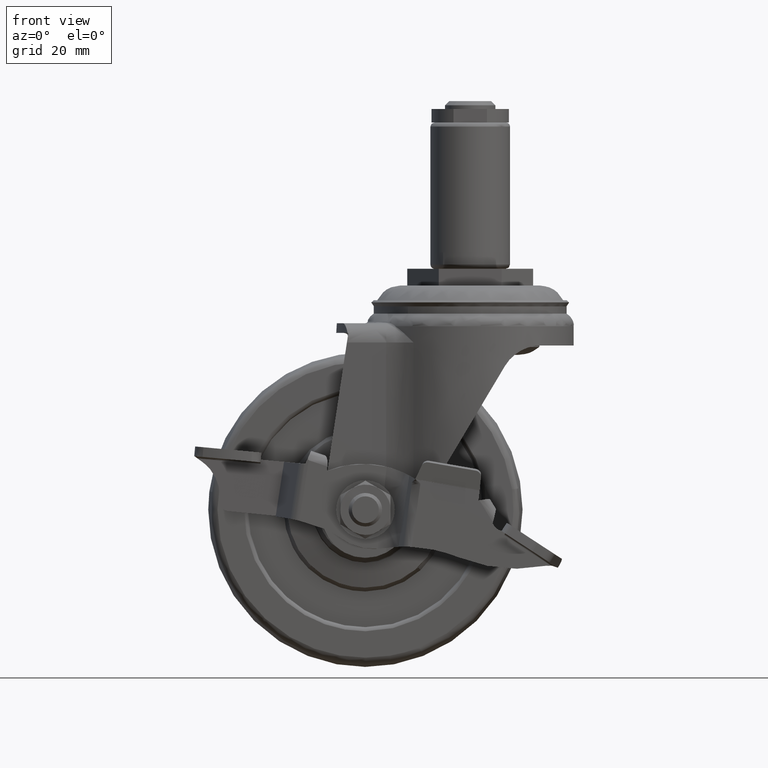
[diagram: clean part render]
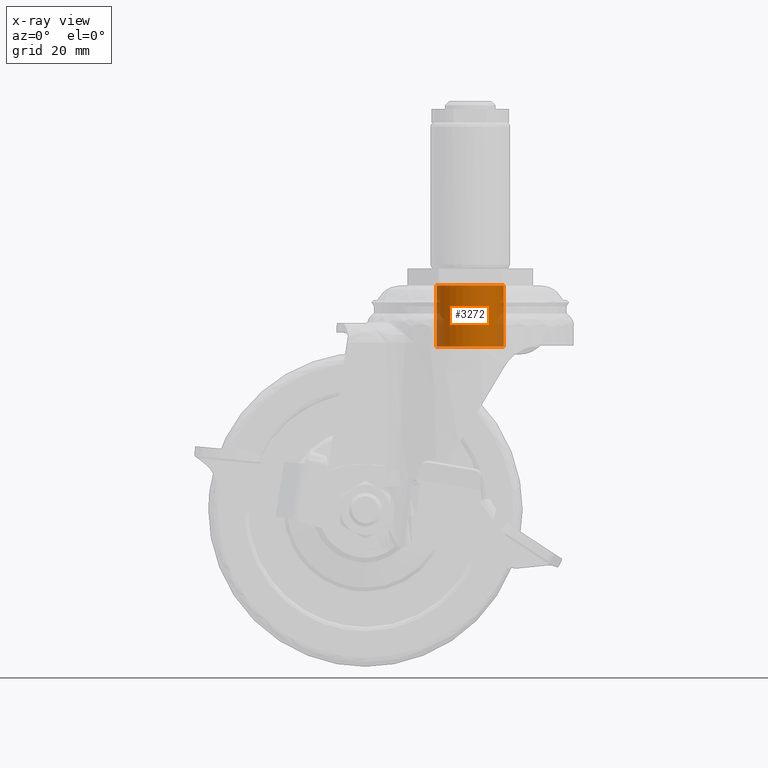
[diagram: x-ray — body ghosted, one internal face saturated and labeled with its STEP entity id]
A machine part, front view, then the same camera in x-ray: the body is ghosted and one INTERNAL B-rep face — a face not visible from any outside direction — is saturated and labeled: STEP entity #3272.
In plain terms, the highlighted face is a freeform B-spline surface patch.
Its self-contained STEP definition (entity closure, byte-faithful):
#3125=CARTESIAN_POINT('',(5.165936307056203,6.108445143523718,-3.636111497701160));
#3126=CARTESIAN_POINT('',(5.340757382698318,5.960598265852118,-3.636111497701160));
#3127=CARTESIAN_POINT('',(5.506836605550030,5.802994968098299,-3.636111497701160));
#3128=CARTESIAN_POINT('',(11.309831573648330,0.296158362548269,-3.636111497701160));
#3129=CARTESIAN_POINT('',(5.802994968098299,-5.506836605550030,-3.636111497701160));
#3130=CARTESIAN_POINT('',(0.296158362548269,-11.309831573648330,-3.636111497701160));
#3131=CARTESIAN_POINT('',(-5.506836605550030,-5.802994968098299,-3.636111497701160));
#3132=CARTESIAN_POINT('',(-11.309831573648330,-0.296158362548269,-3.636111497701160));
#3133=CARTESIAN_POINT('',(-5.802994968098299,5.506836605550030,-3.636111497701160));
#3134=CARTESIAN_POINT('',(5.165936307056203,6.108445143523718,-18.928525806809915));
#3135=CARTESIAN_POINT('',(5.340757382698318,5.960598265852118,-18.928525806809926));
#3136=CARTESIAN_POINT('',(5.506836605550030,5.802994968098299,-18.928525806809919));
#3137=CARTESIAN_POINT('',(11.309831573648330,0.296158362548269,-18.928525806809919));
#3138=CARTESIAN_POINT('',(5.802994968098299,-5.506836605550030,-18.928525806809919));
#3139=CARTESIAN_POINT('',(0.296158362548269,-11.309831573648330,-18.928525806809919));
#3140=CARTESIAN_POINT('',(-5.506836605550030,-5.802994968098299,-18.928525806809919));
#3141=CARTESIAN_POINT('',(-11.309831573648330,-0.296158362548269,-18.928525806809919));
#3142=CARTESIAN_POINT('',(-5.802994968098299,5.506836605550030,-18.928525806809919));
#3150=(BOUNDED_SURFACE()B_SPLINE_SURFACE(2,1,((#3125,#3134),(#3126,#3135),(#3127,#3136),(#3128,#3137),(#3129,#3138),(#3130,#3139),(#3131,#3140),(#3132,#3141),(#3133,#3142)),.UNSPECIFIED.,.F.,.F.,.U.)B_SPLINE_SURFACE_WITH_KNOTS((3,2,2,2,3),(2,2),(0.0,0.530193359837562,13.785027355776601,27.039861351715640,40.294695347654667),(0.0,15.292414309108761),.UNSPECIFIED.)GEOMETRIC_REPRESENTATION_ITEM()RATIONAL_B_SPLINE_SURFACE(((0.977505800795127,0.977505800795127),(0.988284271247462,0.988284271247462),(1.0,1.0),(0.707106781186548,0.707106781186548),(1.0,1.0),(0.707106781186548,0.707106781186548),(1.0,1.0),(0.707106781186548,0.707106781186548),(1.0,1.0)))REPRESENTATION_ITEM('')SURFACE());
#3151=CARTESIAN_POINT('',(5.165936815229818,6.108445677481288,-18.555540091962129));
#3152=VERTEX_POINT('',#3151);
#3153=CARTESIAN_POINT('',(8.0,0.0,-18.555540091953599));
#3154=VERTEX_POINT('',#3153);
#3155=CARTESIAN_POINT('',(5.165936815229818,6.108445677481288,-18.555540091962129));
#3156=CARTESIAN_POINT('',(5.663604074662358,5.687804402541835,-18.555540091961571));
#3157=CARTESIAN_POINT('',(6.381675316892859,4.911304328376124,-18.555540091960371));
#3158=CARTESIAN_POINT('',(7.197280878142523,3.580383581863635,-18.555540091958662));
#3159=CARTESIAN_POINT('',(7.818010558905062,2.027068325350712,-18.555540091956331));
#3160=CARTESIAN_POINT('',(8.000283151314717,0.760235045073295,-18.555540091954668));
#3161=CARTESIAN_POINT('',(8.0,0.0,-18.555540091953599));
#3162=B_SPLINE_CURVE_WITH_KNOTS('',3,(#3155,#3156,#3157,#3158,#3159,#3160,#3161),.UNSPECIFIED.,.F.,.U.,(4,1,1,1,4),(0.000000081647652,1.954821896108227,3.149433326134993,4.669834928333141,6.950466622986235),.UNSPECIFIED.);
#3163=EDGE_CURVE('',#3152,#3154,#3162,.T.);
#3164=ORIENTED_EDGE('',*,*,#3163,.F.);
#3165=CARTESIAN_POINT('',(5.165936814817449,6.108445677829996,-4.0));
#3166=VERTEX_POINT('',#3165);
#3167=CARTESIAN_POINT('',(5.165936814817449,6.108445677829996,-4.0));
#3168=CARTESIAN_POINT('',(5.165936815229818,6.108445677481288,-18.555540091962129));
#3169=QUASI_UNIFORM_CURVE('',1,(#3167,#3168),.UNSPECIFIED.,.F.,.U.);
#3170=EDGE_CURVE('',#3166,#3152,#3169,.T.);
#3171=ORIENTED_EDGE('',*,*,#3170,.F.);
#3172=CARTESIAN_POINT('',(8.0,0.0,-4.0));
#3173=VERTEX_POINT('',#3172);
#3174=CARTESIAN_POINT('',(5.165936814817449,6.108445677829996,-4.0));
#3175=CARTESIAN_POINT('',(5.663578981916776,5.687791270691822,-4.000000000000002));
#3176=CARTESIAN_POINT('',(6.579885767789955,4.697181276460622,-4.000000000000003));
#3177=CARTESIAN_POINT('',(7.690919377515655,2.642149942983529,-4.000000000000012));
#3178=CARTESIAN_POINT('',(8.000825491285763,0.977512317689427,-3.999999999999981));
#3179=CARTESIAN_POINT('',(8.0,0.0,-4.0));
#3180=B_SPLINE_CURVE_WITH_KNOTS('',3,(#3174,#3175,#3176,#3177,#3178,#3179),.UNSPECIFIED.,.F.,.U.,(4,1,1,4),(0.000000081646908,1.954821896259656,4.018212357637070,6.950466623526283),.UNSPECIFIED.);
#3181=EDGE_CURVE('',#3166,#3173,#3180,.T.);
#3182=ORIENTED_EDGE('',*,*,#3181,.T.);
#3183=CARTESIAN_POINT('',(-0.000002984851882,-7.999999999999443,-4.0));
#3184=VERTEX_POINT('',#3183);
#3185=CARTESIAN_POINT('',(8.0,0.0,-4.0));
#3186=CARTESIAN_POINT('',(8.000294438418900,-0.752706457951872,-4.0));
#3187=CARTESIAN_POINT('',(7.827777223956086,-1.963337777388426,-4.000000000000012));
#3188=CARTESIAN_POINT('',(7.189423452212759,-3.618199443899121,-3.999999999999970));
#3189=CARTESIAN_POINT('',(6.439833143129461,-4.818128412169669,-4.000000000000074));
#3190=CARTESIAN_POINT('',(5.404125972497939,-5.960892529908496,-3.999999999999951));
#3191=CARTESIAN_POINT('',(4.277429867146775,-6.818131778857601,-3.999999999999951));
#3192=CARTESIAN_POINT('',(2.894932270174264,-7.503406794818148,-4.000000000000061));
#3193=CARTESIAN_POINT('',(1.505334384867124,-7.906363773942565,-3.999999999999933));
#3194=CARTESIAN_POINT('',(0.490872696060354,-8.000040043058815,-3.999999999999986));
#3195=CARTESIAN_POINT('',(-0.000002984851882,-7.999999999999443,-4.0));
#3196=B_SPLINE_CURVE_WITH_KNOTS('',3,(#3185,#3186,#3187,#3188,#3189,#3190,#3191,#3192,#3193,#3194,#3195),.UNSPECIFIED.,.F.,.U.,(4,1,1,1,1,1,1,1,4),(0.000000246687721,2.258014519479866,3.632501967428759,5.301494667160003,6.479525313812588,8.246727362227471,9.523016237570193,11.093820739797829,12.566451145342510),.UNSPECIFIED.);
#3197=EDGE_CURVE('',#3173,#3184,#3196,.T.);
#3198=ORIENTED_EDGE('',*,*,#3197,.T.);
#3199=CARTESIAN_POINT('',(-8.0,0.0,-4.0));
#3200=VERTEX_POINT('',#3199);
#3201=CARTESIAN_POINT('',(-0.000002984851882,-7.999999999999443,-4.0));
#3202=CARTESIAN_POINT('',(-0.916390925002950,-8.000668160315113,-3.999999999999992));
#3203=CARTESIAN_POINT('',(-2.421282659333648,-7.738408869352444,-4.000000000000027));
#3204=CARTESIAN_POINT('',(-4.107794409424840,-6.915055534213730,-3.999999999999976));
#3205=CARTESIAN_POINT('',(-5.298642796582012,-6.043079823430417,-4.000000000000035));
#3206=CARTESIAN_POINT('',(-6.424111361995553,-4.889993165144703,-3.999999999999969));
#3207=CARTESIAN_POINT('',(-7.289925403755440,-3.445423770148769,-4.000000000000012));
#3208=CARTESIAN_POINT('',(-7.866663739495722,-1.734333030821327,-4.000000000000003));
#3209=CARTESIAN_POINT('',(-8.000176699787099,-0.654514621450649,-3.999999999999977));
#3210=CARTESIAN_POINT('',(-8.0,0.0,-4.0));
#3211=B_SPLINE_CURVE_WITH_KNOTS('',3,(#3201,#3202,#3203,#3204,#3205,#3206,#3207,#3208,#3209,#3210),.UNSPECIFIED.,.F.,.U.,(4,1,1,1,1,1,1,4),(0.000000247721246,2.748903169216778,4.516078756117574,5.596048701349735,7.166743440059172,9.326658146352111,10.602946679510231,12.566447780697700),.UNSPECIFIED.);
#3212=EDGE_CURVE('',#3184,#3200,#3211,.T.);
#3213=ORIENTED_EDGE('',*,*,#3212,.T.);
#3214=CARTESIAN_POINT('',(-5.802994354591379,5.506836169483856,-4.0));
#3215=VERTEX_POINT('',#3214);
#3216=CARTESIAN_POINT('',(-8.0,0.0,-4.0));
#3217=CARTESIAN_POINT('',(-8.000406733883196,0.822534403963674,-3.999999999999992));
#3218=CARTESIAN_POINT('',(-7.778487339477819,2.245836446553210,-4.000000000000028));
#3219=CARTESIAN_POINT('',(-6.945434369402329,4.105224767488863,-3.999999999999954));
#3220=CARTESIAN_POINT('',(-6.216814899346143,5.070919783005751,-4.000000000000023));
#3221=CARTESIAN_POINT('',(-5.802994354591379,5.506836169483856,-4.0));
#3222=B_SPLINE_CURVE_WITH_KNOTS('',3,(#3216,#3217,#3218,#3219,#3220,#3221),.UNSPECIFIED.,.F.,.U.,(4,1,1,4),(0.000000060689669,2.467498381543623,4.270621019084388,6.073781231995312),.UNSPECIFIED.);
#3223=EDGE_CURVE('',#3200,#3215,#3222,.T.);
#3224=ORIENTED_EDGE('',*,*,#3223,.T.);
#3225=CARTESIAN_POINT('',(-5.802994353691822,5.506836170431753,-18.555540091945179));
#3226=VERTEX_POINT('',#3225);
#3227=CARTESIAN_POINT('',(-5.802994354591379,5.506836169483856,-4.0));
#3228=CARTESIAN_POINT('',(-5.802994353691822,5.506836170431753,-18.555540091945179));
#3229=QUASI_UNIFORM_CURVE('',1,(#3227,#3228),.UNSPECIFIED.,.F.,.U.);
#3230=EDGE_CURVE('',#3215,#3226,#3229,.T.);
#3231=ORIENTED_EDGE('',*,*,#3230,.T.);
#3232=CARTESIAN_POINT('',(-8.0,0.0,-18.555540091953599));
#3233=VERTEX_POINT('',#3232);
#3234=CARTESIAN_POINT('',(-8.0,0.0,-18.555540091953599));
#3235=CARTESIAN_POINT('',(-8.000400020336301,0.790909110462580,-18.555540091952391));
#3236=CARTESIAN_POINT('',(-7.805974183111389,2.087645860746509,-18.555540091950409));
#3237=CARTESIAN_POINT('',(-7.030033562351530,3.967552607878680,-18.555540091947599));
#3238=CARTESIAN_POINT('',(-6.304023820027519,4.979211431506020,-18.555540091945922));
#3239=CARTESIAN_POINT('',(-5.802994353691822,5.506836170431753,-18.555540091945179));
#3240=B_SPLINE_CURVE_WITH_KNOTS('',3,(#3234,#3235,#3236,#3237,#3238,#3239),.UNSPECIFIED.,.F.,.U.,(4,1,1,4),(0.000000060689482,2.372575868043335,3.891011468836128,6.073781233302118),.UNSPECIFIED.);
#3241=EDGE_CURVE('',#3233,#3226,#3240,.T.);
#3242=ORIENTED_EDGE('',*,*,#3241,.F.);
#3243=CARTESIAN_POINT('',(-0.000002984851776,-7.999999999999443,-18.555540091953599));
#3244=VERTEX_POINT('',#3243);
#3245=CARTESIAN_POINT('',(-0.000002984851776,-7.999999999999443,-18.555540091953599));
#3246=CARTESIAN_POINT('',(-0.785449314370037,-8.000375378105476,-18.555540091953681));
#3247=CARTESIAN_POINT('',(-2.061478484588835,-7.810423788308085,-18.555540091953478));
#3248=CARTESIAN_POINT('',(-3.948824105244288,-7.042361385302544,-18.555540091953588));
#3249=CARTESIAN_POINT('',(-5.401651401991310,-6.005795629127420,-18.555540091953930));
#3250=CARTESIAN_POINT('',(-6.733353415983663,-4.461927656366128,-18.555540091953560));
#3251=CARTESIAN_POINT('',(-7.726089637920584,-2.519540610431893,-18.555540091953489));
#3252=CARTESIAN_POINT('',(-8.000556971550447,-0.883644946300836,-18.555540091953780));
#3253=CARTESIAN_POINT('',(-8.0,0.0,-18.555540091953599));
#3254=B_SPLINE_CURVE_WITH_KNOTS('',3,(#3245,#3246,#3247,#3248,#3249,#3250,#3251,#3252,#3253),.UNSPECIFIED.,.F.,.U.,(4,1,1,1,1,1,4),(0.000000247721250,2.356208239121157,3.828847838257408,6.086926040541182,7.657633151345034,9.915716085447819,12.566447780697761),.UNSPECIFIED.);
#3255=EDGE_CURVE('',#3244,#3233,#3254,.T.);
#3256=ORIENTED_EDGE('',*,*,#3255,.F.);
#3257=CARTESIAN_POINT('',(8.0,0.0,-18.555540091953599));
#3258=CARTESIAN_POINT('',(8.000015569252994,-0.458134997228633,-18.555540091953610));
#3259=CARTESIAN_POINT('',(7.901475573619212,-1.603540330193147,-18.555540091953560));
#3260=CARTESIAN_POINT('',(7.403182145786944,-3.210898964790841,-18.555540091953610));
#3261=CARTESIAN_POINT('',(6.409626123758576,-4.915595663955120,-18.555540091953581));
#3262=CARTESIAN_POINT('',(5.194101839127426,-6.176835320688505,-18.555540091953610));
#3263=CARTESIAN_POINT('',(3.734691019534487,-7.125974477458339,-18.555540091953581));
#3264=CARTESIAN_POINT('',(2.094221052467679,-7.805637074912705,-18.555540091953691));
#3265=CARTESIAN_POINT('',(0.785428748686318,-8.000325444179651,-18.555540091953461));
#3266=CARTESIAN_POINT('',(-0.000002984851776,-7.999999999999443,-18.555540091953599));
#3267=B_SPLINE_CURVE_WITH_KNOTS('',3,(#3257,#3258,#3259,#3260,#3261,#3262,#3263,#3264,#3265,#3266),.UNSPECIFIED.,.F.,.U.,(4,1,1,1,1,1,1,4),(0.000000246684067,1.374426883313243,3.436148564803126,5.006960597056188,7.264973321386885,8.639417171240153,10.210259711273091,12.566451145342480),.UNSPECIFIED.);
#3268=EDGE_CURVE('',#3154,#3244,#3267,.T.);
#3269=ORIENTED_EDGE('',*,*,#3268,.F.);
#3270=EDGE_LOOP('',(#3164,#3171,#3182,#3198,#3213,#3224,#3231,#3242,#3256,#3269));
#3271=FACE_OUTER_BOUND('',#3270,.T.);
#3272=ADVANCED_FACE('',(#3271),#3150,.T.);